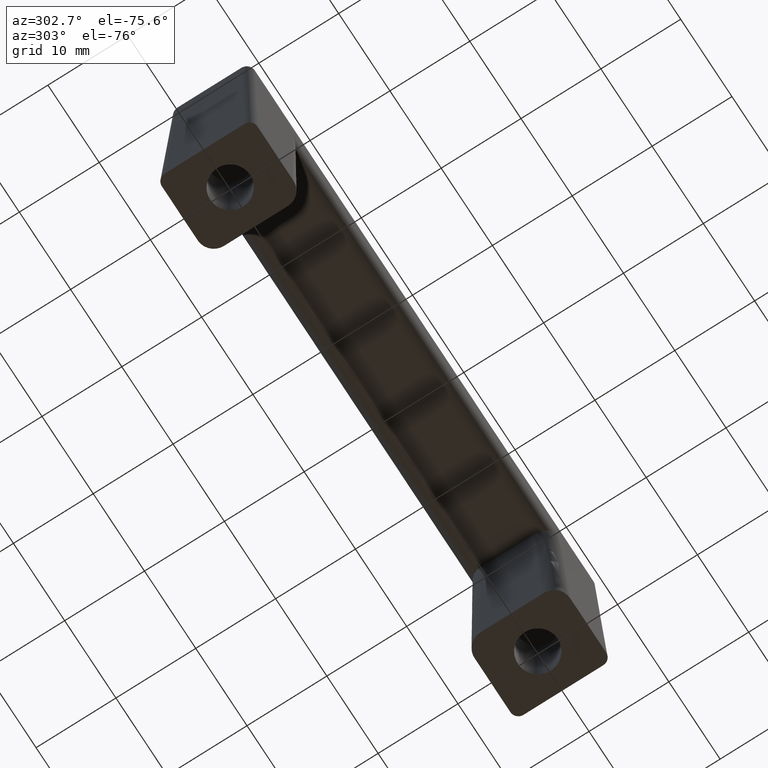
[diagram: clean part render]
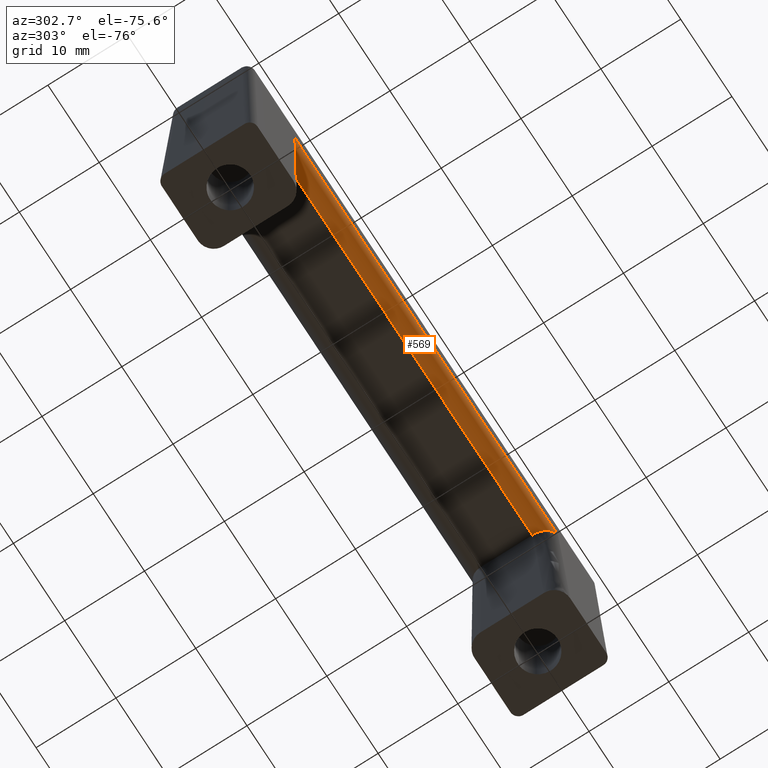
[diagram: same view with one face highlighted and labeled with its STEP entity id]
A machine part, auxiliary view. The second image highlights one B-rep face of the part: STEP entity #569.
In plain terms, the highlighted face is a freeform B-spline surface patch.
Its self-contained STEP definition (entity closure, byte-faithful):
#442=CARTESIAN_POINT('',(-23.999955810935749,-3.229106748411150,23.001016348478050));
#443=VERTEX_POINT('',#442);
#444=CARTESIAN_POINT('',(-25.914932944908049,-5.164243686676070,25.066645707369648));
#445=VERTEX_POINT('',#444);
#446=CARTESIAN_POINT('',(-23.999955810935749,-3.229106748411150,23.001016348478050));
#447=CARTESIAN_POINT('',(-23.998806501655523,-4.057960403212612,23.027450461922708));
#448=CARTESIAN_POINT('',(-24.559858478490611,-4.624918899450666,23.632640685715881));
#449=CARTESIAN_POINT('',(-25.120910455325703,-5.191877395688723,24.237830909509061));
#450=CARTESIAN_POINT('',(-25.914932944908049,-5.164243686676070,25.066645707369648));
#458=(BOUNDED_CURVE()B_SPLINE_CURVE(2,(#446,#447,#448,#449,#450),.UNSPECIFIED.,.F.,.U.)B_SPLINE_CURVE_WITH_KNOTS((3,2,3),(0.0,0.500000000000000,1.0),.UNSPECIFIED.)CURVE()GEOMETRIC_REPRESENTATION_ITEM()RATIONAL_B_SPLINE_CURVE((1.0,0.923741005897335,1.0,0.923741005897335,1.0))REPRESENTATION_ITEM(''));
#459=EDGE_CURVE('',#443,#445,#458,.T.);
#493=CARTESIAN_POINT('',(27.210679592153451,-5.159654631657225,25.150886104862771));
#494=CARTESIAN_POINT('',(-27.243073258334590,-5.159654631657225,25.150886104862771));
#495=CARTESIAN_POINT('',(27.210679592153451,-5.330200348963608,22.896739756980278));
#496=CARTESIAN_POINT('',(-27.243073258334601,-5.330200348963608,22.896739756980278));
#497=CARTESIAN_POINT('',(27.210679592153451,-3.072071771547805,23.002176596944469));
#498=CARTESIAN_POINT('',(-27.243073258334590,-3.072071771547805,23.002176596944469));
#506=(BOUNDED_SURFACE()B_SPLINE_SURFACE(1,2,((#493,#495,#497),(#494,#496,#498)),.UNSPECIFIED.,.F.,.F.,.U.)B_SPLINE_SURFACE_WITH_KNOTS((2,2),(3,3),(0.0,54.453752850488058),(0.0,3.603737229526386),.UNSPECIFIED.)GEOMETRIC_REPRESENTATION_ITEM()RATIONAL_B_SPLINE_SURFACE(((1.0,0.662620048215738,1.0),(1.0,0.662620048215738,1.0)))REPRESENTATION_ITEM('')SURFACE());
#507=CARTESIAN_POINT('',(23.999955810935749,-3.229106748411160,23.001016348478050));
#508=VERTEX_POINT('',#507);
#509=CARTESIAN_POINT('',(25.914932944908049,-5.164243686676070,25.066645707369648));
#510=VERTEX_POINT('',#509);
#511=CARTESIAN_POINT('',(23.999955810935749,-3.229106748411160,23.001016348478050));
#512=CARTESIAN_POINT('',(23.998806501669947,-4.057960392813730,23.027450461591069));
#513=CARTESIAN_POINT('',(24.559858466477859,-4.624918887311454,23.632640672758079));
#514=CARTESIAN_POINT('',(25.120910431285790,-5.191877381809176,24.237830883925088));
#515=CARTESIAN_POINT('',(25.914932944908049,-5.164243686676070,25.066645707369648));
#523=(BOUNDED_CURVE()B_SPLINE_CURVE(2,(#511,#512,#513,#514,#515),.UNSPECIFIED.,.F.,.U.)B_SPLINE_CURVE_WITH_KNOTS((3,2,3),(0.0,0.500000000000000,1.0),.UNSPECIFIED.)CURVE()GEOMETRIC_REPRESENTATION_ITEM()RATIONAL_B_SPLINE_CURVE((1.0,0.923741007597522,1.0,0.923741007597522,1.0))REPRESENTATION_ITEM(''));
#524=EDGE_CURVE('',#508,#510,#523,.T.);
#525=ORIENTED_EDGE('',*,*,#524,.T.);
#526=CARTESIAN_POINT('',(-25.914932944908049,-5.164243686676070,25.066645707369648));
#527=CARTESIAN_POINT('',(25.914932944908049,-5.164243686676070,25.066645707369648));
#528=QUASI_UNIFORM_CURVE('',1,(#526,#527),.UNSPECIFIED.,.F.,.U.);
#529=EDGE_CURVE('',#445,#510,#528,.T.);
#530=ORIENTED_EDGE('',*,*,#529,.F.);
#531=ORIENTED_EDGE('',*,*,#459,.F.);
#532=CARTESIAN_POINT('',(-24.0,-3.165354407679065,23.0));
#533=VERTEX_POINT('',#532);
#534=CARTESIAN_POINT('',(-23.999999999999979,-3.165354407679065,23.0));
#535=CARTESIAN_POINT('',(-23.999999999999975,-3.197238679424541,23.0));
#536=CARTESIAN_POINT('',(-23.999955810935749,-3.229106748411150,23.001016348478050));
#544=(BOUNDED_CURVE()B_SPLINE_CURVE(2,(#534,#535,#536),.UNSPECIFIED.,.F.,.U.)CURVE()GEOMETRIC_REPRESENTATION_ITEM()QUASI_UNIFORM_CURVE()RATIONAL_B_SPLINE_CURVE((1.0,0.999872948367296,1.0))REPRESENTATION_ITEM(''));
#545=EDGE_CURVE('',#533,#443,#544,.T.);
#546=ORIENTED_EDGE('',*,*,#545,.F.);
#547=CARTESIAN_POINT('',(24.0,-3.165354407679065,23.0));
#548=VERTEX_POINT('',#547);
#549=CARTESIAN_POINT('',(24.0,-3.165354407679065,23.0));
#550=CARTESIAN_POINT('',(-24.0,-3.165354407679065,23.0));
#551=QUASI_UNIFORM_CURVE('',1,(#549,#550),.UNSPECIFIED.,.F.,.U.);
#552=EDGE_CURVE('',#548,#533,#551,.T.);
#553=ORIENTED_EDGE('',*,*,#552,.F.);
#554=CARTESIAN_POINT('',(23.999955810935749,-3.229106748411160,23.001016348478050));
#555=CARTESIAN_POINT('',(23.999999999970818,-3.197238700495944,23.000000000671911));
#556=CARTESIAN_POINT('',(24.0,-3.165354407679065,23.0));
#564=(BOUNDED_CURVE()B_SPLINE_CURVE(2,(#554,#555,#556),.UNSPECIFIED.,.F.,.U.)CURVE()GEOMETRIC_REPRESENTATION_ITEM()QUASI_UNIFORM_CURVE()RATIONAL_B_SPLINE_CURVE((1.0,0.999872948538251,1.0))REPRESENTATION_ITEM(''));
#565=EDGE_CURVE('',#508,#548,#564,.T.);
#566=ORIENTED_EDGE('',*,*,#565,.F.);
#567=EDGE_LOOP('',(#525,#530,#531,#546,#553,#566));
#568=FACE_OUTER_BOUND('',#567,.T.);
#569=ADVANCED_FACE('',(#568),#506,.T.);